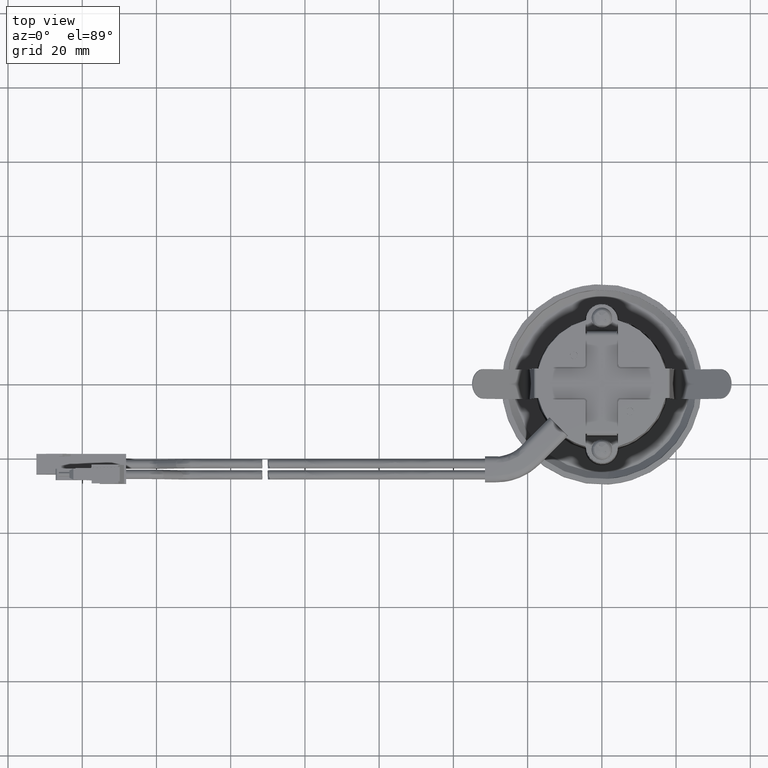
[diagram: clean part render]
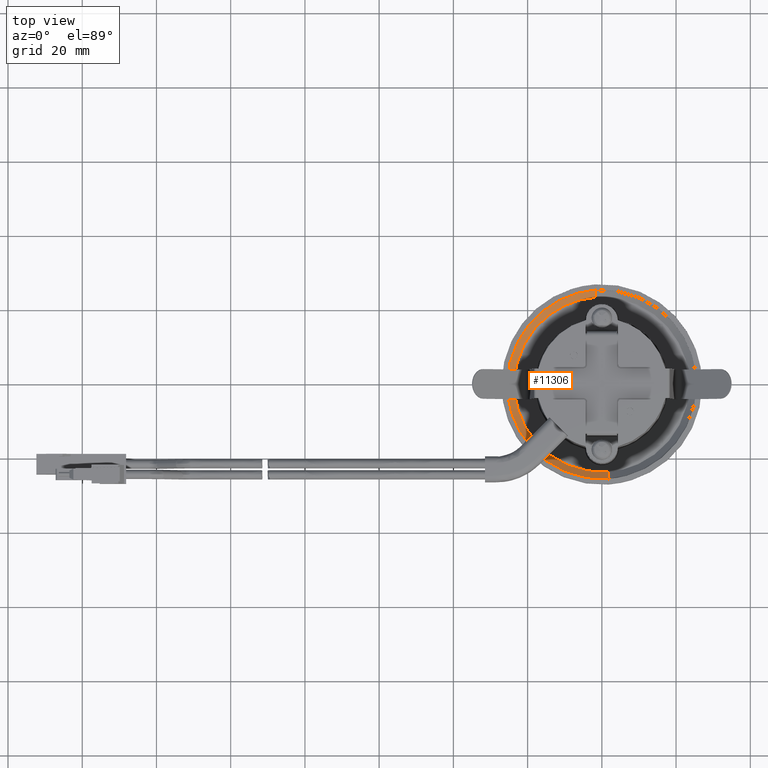
[diagram: same view with one face highlighted and labeled with its STEP entity id]
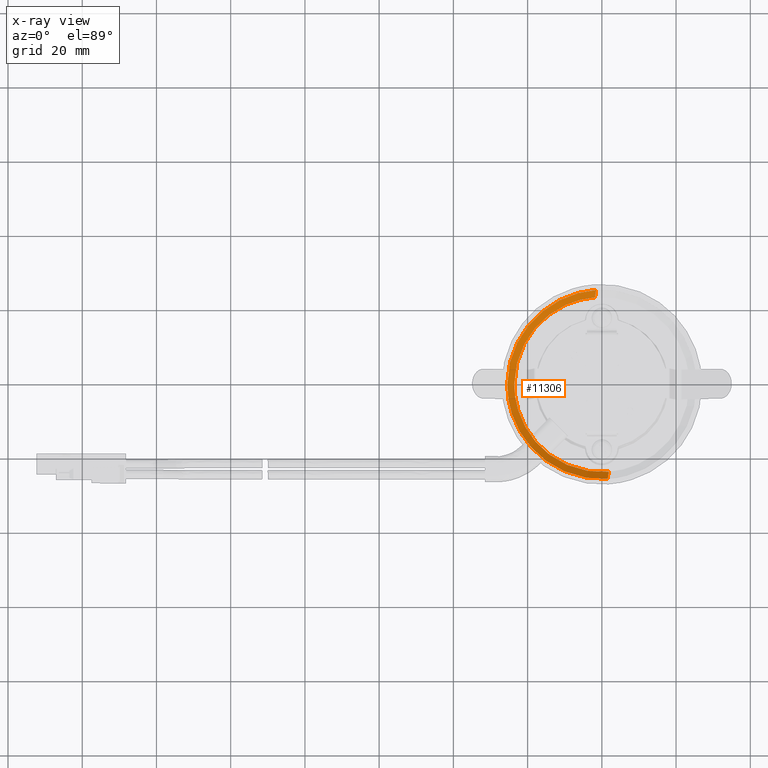
[diagram: x-ray of the same camera — body ghosted, the highlighted face saturated]
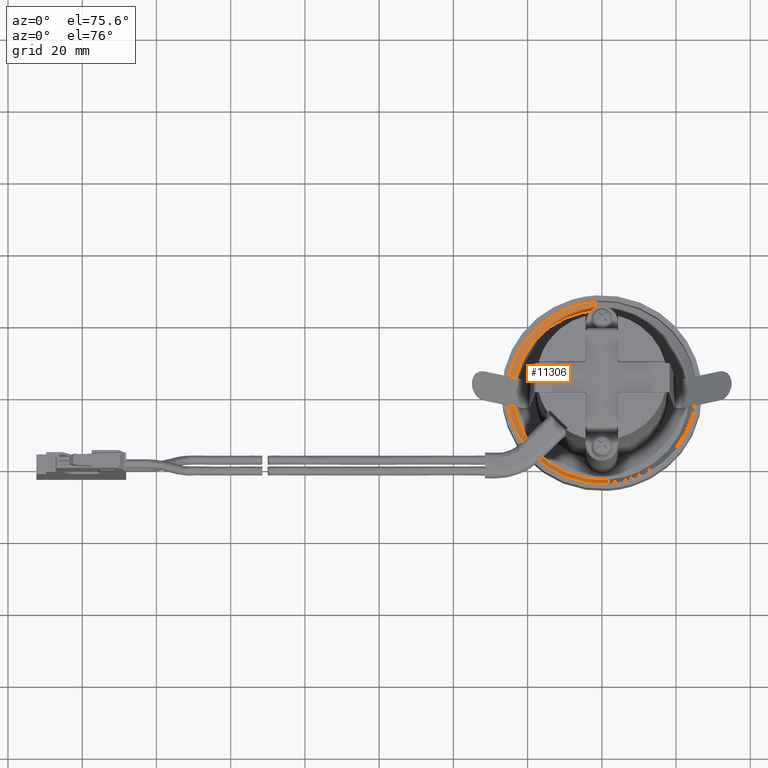
[diagram: same view with one face highlighted and labeled with its STEP entity id]
A machine part, top view. The second image highlights one B-rep face of the part: STEP entity #11306.
The next image is the same camera in x-ray: the body ghosted, the highlighted face saturated — about 0% of this face is hidden behind the body in this view.
A second angle (auxiliary view) of the same face is appended — the face is thin or edge-on in the first view.
In plain terms, the highlighted face is a freeform B-spline surface patch.
Its self-contained STEP definition (entity closure, byte-faithful):
#11133=CARTESIAN_POINT('',(-1.556737808755556,25.452437356702820,3.921320343641145));
#11134=VERTEX_POINT('',#11133);
#11157=CARTESIAN_POINT('',(1.556737808755899,-25.452437356702820,3.921320343641144));
#11158=VERTEX_POINT('',#11157);
#11202=CARTESIAN_POINT('',(-25.499999999999378,0.0,3.921320343558215));
#11203=VERTEX_POINT('',#11202);
#11204=CARTESIAN_POINT('',(1.556737808755899,-25.452437356702823,3.921320343641144));
#11205=CARTESIAN_POINT('',(0.779095489495506,-25.500000000040227,3.921320343639941));
#11206=CARTESIAN_POINT('',(4.013532E-012,-25.500000000039591,3.921320343638663));
#11207=CARTESIAN_POINT('',(-25.499999999997556,-25.500000000018613,3.921320343596860));
#11208=CARTESIAN_POINT('',(-25.499999999999378,0.0,3.921320343558215));
#11216=(BOUNDED_CURVE()B_SPLINE_CURVE(2,(#11204,#11205,#11206,#11207,#11208),.UNSPECIFIED.,.F.,.U.)B_SPLINE_CURVE_WITH_KNOTS((3,2,3),(0.739332961898854,0.750000000000000,1.0),.UNSPECIFIED.)CURVE()GEOMETRIC_REPRESENTATION_ITEM()RATIONAL_B_SPLINE_CURVE((0.976072040937842,0.987502787501398,1.0,0.707106781186547,1.0))REPRESENTATION_ITEM(''));
#11217=EDGE_CURVE('',#11158,#11203,#11216,.T.);
#11219=CARTESIAN_POINT('',(-25.499999999999378,0.0,3.921320343558215));
#11220=CARTESIAN_POINT('',(-25.278015433528271,23.587480209970540,3.921320343599681));
#11221=CARTESIAN_POINT('',(-1.556737808755556,25.452437356702816,3.921320343641145));
#11229=(BOUNDED_CURVE()B_SPLINE_CURVE(2,(#11219,#11220,#11221),.UNSPECIFIED.,.F.,.U.)B_SPLINE_CURVE_WITH_KNOTS((3,3),(0.0,0.236331300628470),.UNSPECIFIED.)CURVE()GEOMETRIC_REPRESENTATION_ITEM()RATIONAL_B_SPLINE_CURVE((1.0,0.723120658610231,0.969723356162848))REPRESENTATION_ITEM(''));
#11230=EDGE_CURVE('',#11203,#11134,#11229,.T.);
#11236=CARTESIAN_POINT('',(-1.112594189569704,23.515845015995346,1.951966991411741));
#11237=CARTESIAN_POINT('',(-1.477002551594156,23.487165455922870,1.951966991411742));
#11238=CARTESIAN_POINT('',(-25.304302775076096,21.611916259312213,1.951966991411742));
#11239=CARTESIAN_POINT('',(-23.458109517194060,-1.846193257882027,1.951966991411742));
#11240=CARTESIAN_POINT('',(-21.611916259312043,-25.304302775076266,1.951966991411742));
#11241=CARTESIAN_POINT('',(2.012600317379616,-23.445012997584129,1.951966991411741));
#11242=CARTESIAN_POINT('',(2.178032318636384,-23.431993216721789,1.951966991411741));
#11243=CARTESIAN_POINT('',(-1.208038586310623,25.533162437248759,3.970554177361877));
#11244=CARTESIAN_POINT('',(-1.603707884808433,25.502022588118898,3.970554177361880));
#11245=CARTESIAN_POINT('',(-27.475043855658598,23.465904289379825,3.970554177361878));
#11246=CARTESIAN_POINT('',(-25.470474072519121,-2.004569783139475,3.970554177361878));
#11247=CARTESIAN_POINT('',(-23.465904289379644,-27.475043855658761,3.970554177361878));
#11248=CARTESIAN_POINT('',(2.185252147645893,-25.456254062039537,3.970554177361878));
#11249=CARTESIAN_POINT('',(2.364875808098454,-25.442117373375829,3.970554177361876));
#11257=(BOUNDED_SURFACE()B_SPLINE_SURFACE(2,1,((#11236,#11243),(#11237,#11244),(#11238,#11245),(#11239,#11246),(#11240,#11247),(#11241,#11248),(#11242,#11249)),.UNSPECIFIED.,.F.,.F.,.U.)B_SPLINE_SURFACE_WITH_KNOTS((3,1,2,1,3),(2,2),(0.0,0.948364692027151,43.279721340838456,85.611077989649758,86.037003750794440),(0.0,2.855411255536382),.UNSPECIFIED.)GEOMETRIC_REPRESENTATION_ITEM()RATIONAL_B_SPLINE_SURFACE(((1.013123585410281,1.013123585410281),(1.006561792705140,1.006561792705140),(0.707106781186548,0.707106781186548),(1.0,1.0),(0.707106781186548,0.707106781186548),(1.002947006121070,1.002947006121070),(1.005894012242140,1.005894012242140)))REPRESENTATION_ITEM('')SURFACE());
#11258=ORIENTED_EDGE('',*,*,#11230,.F.);
#11259=ORIENTED_EDGE('',*,*,#11217,.F.);
#11260=CARTESIAN_POINT('',(1.849961884302877,-23.505994456047990,2.000000000000902));
#11261=VERTEX_POINT('',#11260);
#11262=CARTESIAN_POINT('',(1.849961884302877,-23.505994456047990,2.000000000000902));
#11263=CARTESIAN_POINT('',(1.556737808755899,-25.452437356702820,3.921320343641144));
#11264=QUASI_UNIFORM_CURVE('',1,(#11262,#11263),.UNSPECIFIED.,.F.,.U.);
#11265=EDGE_CURVE('',#11261,#11158,#11264,.T.);
#11266=ORIENTED_EDGE('',*,*,#11265,.F.);
#11267=CARTESIAN_POINT('',(-23.578679656442031,0.0,2.000000000000680));
#11268=VERTEX_POINT('',#11267);
#11269=CARTESIAN_POINT('',(1.849961884302877,-23.505994456047990,2.000000000000903));
#11270=CARTESIAN_POINT('',(0.926408846802199,-23.578679656442201,2.000000000000680));
#11271=CARTESIAN_POINT('',(1.705303E-013,-23.578679656442201,2.000000000000680));
#11272=CARTESIAN_POINT('',(-23.578679656442027,-23.578679656442208,2.000000000000680));
#11273=CARTESIAN_POINT('',(-23.578679656442031,0.0,2.000000000000680));
#11281=(BOUNDED_CURVE()B_SPLINE_CURVE(2,(#11269,#11270,#11271,#11272,#11273),.UNSPECIFIED.,.F.,.U.)B_SPLINE_CURVE_WITH_KNOTS((3,2,3),(0.736331300632755,0.750000000000000,1.0),.UNSPECIFIED.)CURVE()GEOMETRIC_REPRESENTATION_ITEM()RATIONAL_B_SPLINE_CURVE((0.969723356171790,0.983986122581336,1.0,0.707106781186547,1.0))REPRESENTATION_ITEM(''));
#11282=EDGE_CURVE('',#11261,#11268,#11281,.T.);
#11283=ORIENTED_EDGE('',*,*,#11282,.T.);
#11284=CARTESIAN_POINT('',(-1.849961884302533,23.505994456047990,2.000000000000902));
#11285=VERTEX_POINT('',#11284);
#11286=CARTESIAN_POINT('',(-23.578679656442031,0.0,2.000000000000680));
#11287=CARTESIAN_POINT('',(-23.578679656442020,21.795907280268395,2.000000000000680));
#11288=CARTESIAN_POINT('',(-1.849961884302517,23.505994456047777,2.000000000000680));
#11296=(BOUNDED_CURVE()B_SPLINE_CURVE(2,(#11286,#11287,#11288),.UNSPECIFIED.,.F.,.U.)B_SPLINE_CURVE_WITH_KNOTS((3,3),(0.0,0.236331300632755),.UNSPECIFIED.)CURVE()GEOMETRIC_REPRESENTATION_ITEM()RATIONAL_B_SPLINE_CURVE((1.0,0.723120658605211,0.969723356171790))REPRESENTATION_ITEM(''));
#11297=EDGE_CURVE('',#11268,#11285,#11296,.T.);
#11298=ORIENTED_EDGE('',*,*,#11297,.T.);
#11299=CARTESIAN_POINT('',(-1.849961884302533,23.505994456047990,2.000000000000902));
#11300=CARTESIAN_POINT('',(-1.556737808755556,25.452437356702820,3.921320343641145));
#11301=QUASI_UNIFORM_CURVE('',1,(#11299,#11300),.UNSPECIFIED.,.F.,.U.);
#11302=EDGE_CURVE('',#11285,#11134,#11301,.T.);
#11303=ORIENTED_EDGE('',*,*,#11302,.T.);
#11304=EDGE_LOOP('',(#11258,#11259,#11266,#11283,#11298,#11303));
#11305=FACE_OUTER_BOUND('',#11304,.T.);
#11306=ADVANCED_FACE('',(#11305),#11257,.F.);